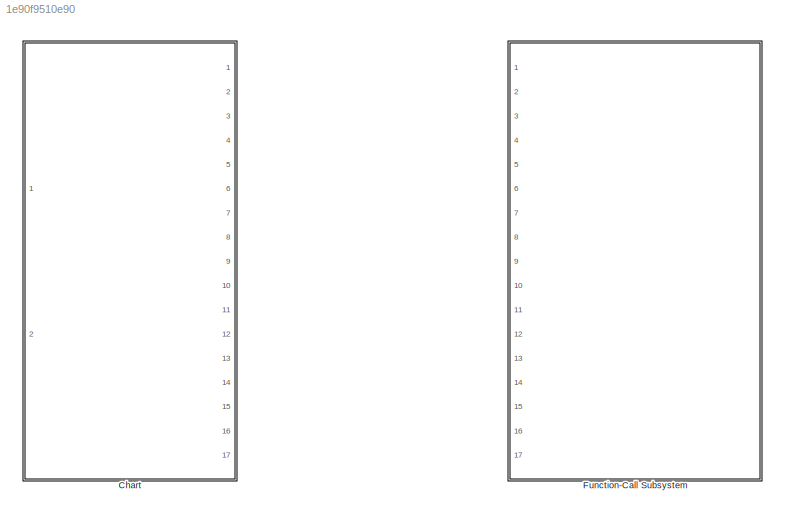
MODEL slx_1e90f9510e90
KIND model
CONFIG AbsTol = auto
CONFIG EnableMultiTasking = off
CONFIG FixedStep = auto
CONFIG MaxStep = auto
CONFIG MinStep = auto
CONFIG RelTol = 1e-3
CONFIG SampleTimeConstraint = Unconstrained
CONFIG Solver = VariableStepAuto
CONFIG SolverName = VariableStepAuto
CONFIG StartTime = 0.0
CONFIG StopTime = 10.0
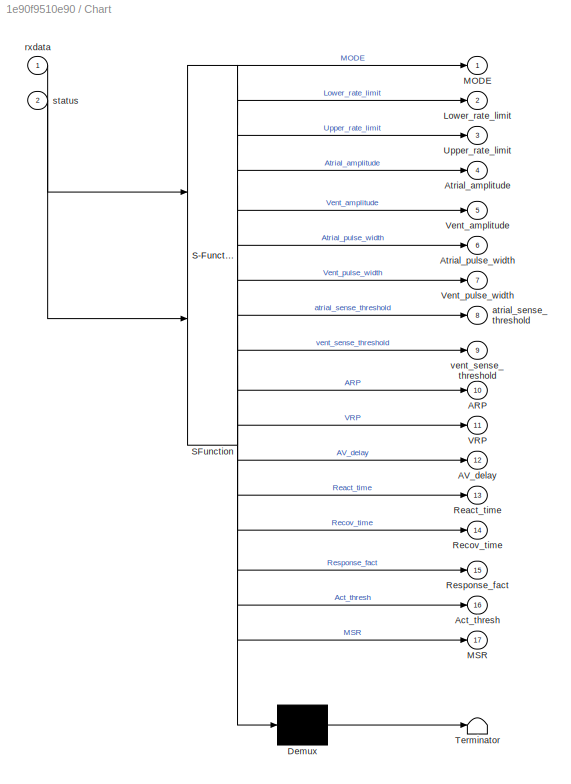
BLOCK [SubSystem] Chart
  BlockKeywords = __PRM__SERIALIZED__DATA__:Stateflow Chart,Stateflow Diagram
  ErrorFcn = Stateflow.Translate.translate
  PermitHierarchicalResolution = ExplicitOnly
  Ports = [2, 17]
  RequestExecContextInheritance = off
  SFBlockType = Chart
  TreatAsAtomicUnit = on
BLOCK [Demux] Chart/ Demux 
  Outputs = 1
  Ports = [1, 1]
BLOCK [S-Function] Chart/ SFunction 
  EnableBusSupport = on
  FunctionName = sf_sfun
  PortCounts = [2 18]
  Ports = [2, 18]
  SFcnIsStateOwnerBlock = off
  SFunctionDeploymentMode = off
  Tag = Stateflow S-Function serial_variables_corrected 1
BLOCK [Terminator] Chart/ Terminator 
BLOCK [Outport] Chart/ARP
  IconDisplay = Port number
  Port = 10
BLOCK [Outport] Chart/AV_delay
  IconDisplay = Port number
  Port = 12
BLOCK [Outport] Chart/Act_thresh
  IconDisplay = Port number
  Port = 16
BLOCK [Outport] Chart/Atrial_amplitude
  IconDisplay = Port number
  Port = 4
BLOCK [Outport] Chart/Atrial_pulse_width
  IconDisplay = Port number
  Port = 6
BLOCK [Outport] Chart/Lower_rate_limit
  IconDisplay = Port number
  Port = 2
BLOCK [Outport] Chart/MODE
  IconDisplay = Port number
BLOCK [Outport] Chart/MSR
  IconDisplay = Port number
  Port = 17
BLOCK [Outport] Chart/React_time
  IconDisplay = Port number
  Port = 13
BLOCK [Outport] Chart/Recov_time
  IconDisplay = Port number
  Port = 14
BLOCK [Outport] Chart/Response_fact
  IconDisplay = Port number
  Port = 15
BLOCK [Outport] Chart/Upper_rate_limit
  IconDisplay = Port number
  Port = 3
BLOCK [Outport] Chart/VRP
  IconDisplay = Port number
  Port = 11
BLOCK [Outport] Chart/Vent_amplitude
  IconDisplay = Port number
  Port = 5
BLOCK [Outport] Chart/Vent_pulse_width
  IconDisplay = Port number
  Port = 7
BLOCK [Outport] Chart/atrial_sense_threshold
  IconDisplay = Port number
  Port = 8
BLOCK [Inport] Chart/rxdata
  IconDisplay = Port number
BLOCK [Inport] Chart/status
  IconDisplay = Port number
  Port = 2
BLOCK [Outport] Chart/vent_sense_threshold
  IconDisplay = Port number
  Port = 9
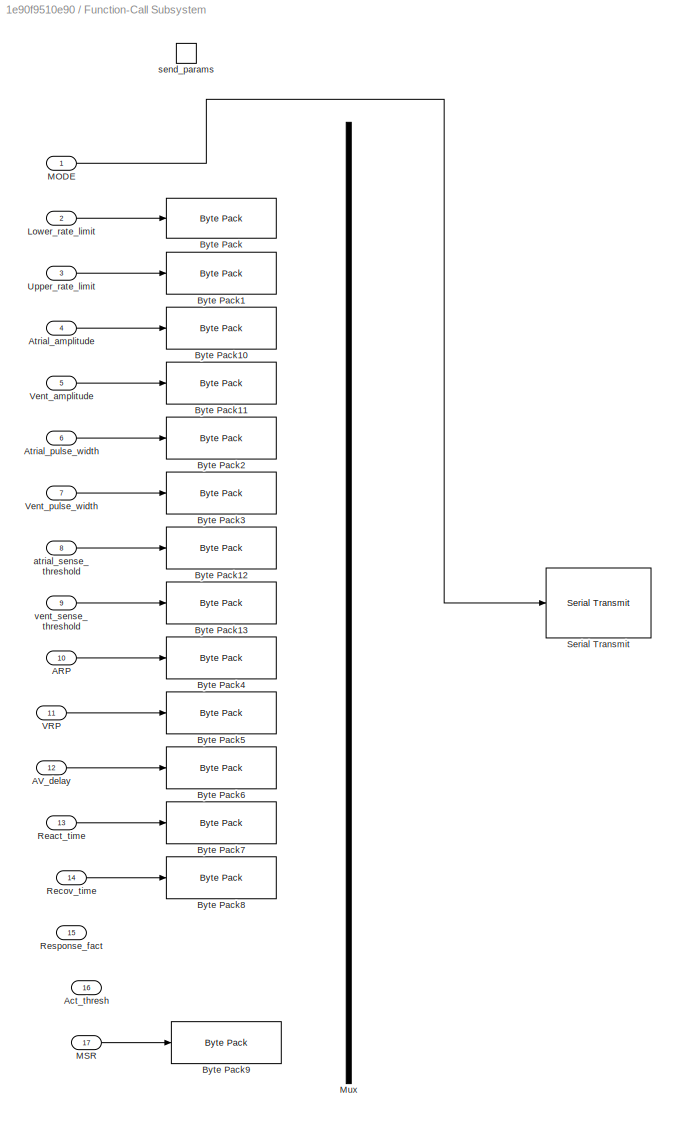
BLOCK [SubSystem] Function-Call Subsystem
  Ports = [17, 0, 0, 1]
  RequestExecContextInheritance = off
  TreatAsAtomicUnit = on
BLOCK [Inport] Function-Call Subsystem/ARP
  IconDisplay = Port number
  Port = 10
BLOCK [Inport] Function-Call Subsystem/AV_delay
  IconDisplay = Port number
  Port = 12
BLOCK [Inport] Function-Call Subsystem/Act_thresh
  IconDisplay = Port number
  Port = 16
BLOCK [Inport] Function-Call Subsystem/Atrial_amplitude
  IconDisplay = Port number
  Port = 4
BLOCK [Inport] Function-Call Subsystem/Atrial_pulse_width
  IconDisplay = Port number
  Port = 6
BLOCK [Reference] Function-Call Subsystem/Byte Pack  REF=etargetslib/Byte Pack
  Commented = on
  Ports = [1, 1]
  SourceBlock = etargetslib/Byte Pack
  SourceProductBaseCode = ME
  SourceProductName = MATLAB Coder
  SourceType = Byte pack
BLOCK [Reference] Function-Call Subsystem/Byte Pack1  REF=etargetslib/Byte Pack
  Commented = on
  Ports = [1, 1]
  SourceBlock = etargetslib/Byte Pack
  SourceProductBaseCode = ME
  SourceProductName = MATLAB Coder
  SourceType = Byte pack
BLOCK [Reference] Function-Call Subsystem/Byte Pack10  REF=etargetslib/Byte Pack
  Commented = on
  Ports = [1, 1]
  SourceBlock = etargetslib/Byte Pack
  SourceProductBaseCode = ME
  SourceProductName = MATLAB Coder
  SourceType = Byte pack
BLOCK [Reference] Function-Call Subsystem/Byte Pack11  REF=etargetslib/Byte Pack
  Commented = on
  Ports = [1, 1]
  SourceBlock = etargetslib/Byte Pack
  SourceProductBaseCode = ME
  SourceProductName = MATLAB Coder
  SourceType = Byte pack
BLOCK [Reference] Function-Call Subsystem/Byte Pack12  REF=etargetslib/Byte Pack
  Commented = on
  Ports = [1, 1]
  SourceBlock = etargetslib/Byte Pack
  SourceProductBaseCode = ME
  SourceProductName = MATLAB Coder
  SourceType = Byte pack
BLOCK [Reference] Function-Call Subsystem/Byte Pack13  REF=etargetslib/Byte Pack
  Commented = on
  Ports = [1, 1]
  SourceBlock = etargetslib/Byte Pack
  SourceProductBaseCode = ME
  SourceProductName = MATLAB Coder
  SourceType = Byte pack
BLOCK [Reference] Function-Call Subsystem/Byte Pack2  REF=etargetslib/Byte Pack
  Commented = on
  Ports = [1, 1]
  SourceBlock = etargetslib/Byte Pack
  SourceProductBaseCode = ME
  SourceProductName = MATLAB Coder
  SourceType = Byte pack
BLOCK [Reference] Function-Call Subsystem/Byte Pack3  REF=etargetslib/Byte Pack
  Commented = on
  Ports = [1, 1]
  SourceBlock = etargetslib/Byte Pack
  SourceProductBaseCode = ME
  SourceProductName = MATLAB Coder
  SourceType = Byte pack
BLOCK [Reference] Function-Call Subsystem/Byte Pack4  REF=etargetslib/Byte Pack
  Commented = on
  Ports = [1, 1]
  SourceBlock = etargetslib/Byte Pack
  SourceProductBaseCode = ME
  SourceProductName = MATLAB Coder
  SourceType = Byte pack
BLOCK [Reference] Function-Call Subsystem/Byte Pack5  REF=etargetslib/Byte Pack
  Commented = on
  Ports = [1, 1]
  SourceBlock = etargetslib/Byte Pack
  SourceProductBaseCode = ME
  SourceProductName = MATLAB Coder
  SourceType = Byte pack
BLOCK [Reference] Function-Call Subsystem/Byte Pack6  REF=etargetslib/Byte Pack
  Commented = on
  Ports = [1, 1]
  SourceBlock = etargetslib/Byte Pack
  SourceProductBaseCode = ME
  SourceProductName = MATLAB Coder
  SourceType = Byte pack
BLOCK [Reference] Function-Call Subsystem/Byte Pack7  REF=etargetslib/Byte Pack
  Commented = on
  Ports = [1, 1]
  SourceBlock = etargetslib/Byte Pack
  SourceProductBaseCode = ME
  SourceProductName = MATLAB Coder
  SourceType = Byte pack
BLOCK [Reference] Function-Call Subsystem/Byte Pack8  REF=etargetslib/Byte Pack
  Commented = on
  Ports = [1, 1]
  SourceBlock = etargetslib/Byte Pack
  SourceProductBaseCode = ME
  SourceProductName = MATLAB Coder
  SourceType = Byte pack
BLOCK [Reference] Function-Call Subsystem/Byte Pack9  REF=etargetslib/Byte Pack
  Commented = on
  Ports = [1, 1]
  SourceBlock = etargetslib/Byte Pack
  SourceProductBaseCode = ME
  SourceProductName = MATLAB Coder
  SourceType = Byte pack
BLOCK [Inport] Function-Call Subsystem/Lower_rate_limit
  IconDisplay = Port number
  Port = 2
BLOCK [Inport] Function-Call Subsystem/MODE
  IconDisplay = Port number
BLOCK [Inport] Function-Call Subsystem/MSR
  IconDisplay = Port number
  Port = 17
BLOCK [Mux] Function-Call Subsystem/Mux
  DisplayOption = bar
  Inputs = 17
  Ports = [17, 1]
BLOCK [Inport] Function-Call Subsystem/React_time
  IconDisplay = Port number
  Port = 13
BLOCK [Inport] Function-Call Subsystem/Recov_time
  IconDisplay = Port number
  Port = 14
BLOCK [Inport] Function-Call Subsystem/Response_fact
  IconDisplay = Port number
  Port = 15
BLOCK [Reference] Function-Call Subsystem/Serial Transmit  REF=frdmk64flib/Serial Transmit
  Ports = [1]
  SourceBlock = frdmk64flib/Serial Transmit
  SourceProductBaseCode = EC_FRDM_K64F
  SourceProductName = Simulink Coder Support Package for NXP FRDM-K64F Board
  SourceType = freedomk64f.SCIWrite
BLOCK [Inport] Function-Call Subsystem/Upper_rate_limit
  IconDisplay = Port number
  Port = 3
BLOCK [Inport] Function-Call Subsystem/VRP
  IconDisplay = Port number
  Port = 11
BLOCK [Inport] Function-Call Subsystem/Vent_amplitude
  IconDisplay = Port number
  Port = 5
BLOCK [Inport] Function-Call Subsystem/Vent_pulse_width
  IconDisplay = Port number
  Port = 7
BLOCK [Inport] Function-Call Subsystem/atrial_sense_threshold
  IconDisplay = Port number
  Port = 8
BLOCK [TriggerPort] Function-Call Subsystem/send_params
  FunctionName = send_params
  IsSimulinkFunction = on
  Ports = []
  StatesWhenEnabling = held
  TriggerType = function-call
  VariantControl = Variant
BLOCK [Inport] Function-Call Subsystem/vent_sense_threshold
  IconDisplay = Port number
  Port = 9
LINE Function-Call Subsystem/ARP:1 -> Function-Call Subsystem/Byte Pack4:1
LINE Function-Call Subsystem/AV_delay:1 -> Function-Call Subsystem/Byte Pack6:1
LINE Function-Call Subsystem/Atrial_amplitude:1 -> Function-Call Subsystem/Byte Pack10:1
LINE Function-Call Subsystem/Atrial_pulse_width:1 -> Function-Call Subsystem/Byte Pack2:1
LINE Function-Call Subsystem/Lower_rate_limit:1 -> Function-Call Subsystem/Byte Pack:1
LINE Function-Call Subsystem/MODE:1 -> Function-Call Subsystem/Serial Transmit:1
LINE Function-Call Subsystem/MSR:1 -> Function-Call Subsystem/Byte Pack9:1
LINE Function-Call Subsystem/React_time:1 -> Function-Call Subsystem/Byte Pack7:1
LINE Function-Call Subsystem/Recov_time:1 -> Function-Call Subsystem/Byte Pack8:1
LINE Function-Call Subsystem/Upper_rate_limit:1 -> Function-Call Subsystem/Byte Pack1:1
LINE Function-Call Subsystem/VRP:1 -> Function-Call Subsystem/Byte Pack5:1
LINE Function-Call Subsystem/Vent_amplitude:1 -> Function-Call Subsystem/Byte Pack11:1
LINE Function-Call Subsystem/Vent_pulse_width:1 -> Function-Call Subsystem/Byte Pack3:1
LINE Function-Call Subsystem/atrial_sense_threshold:1 -> Function-Call Subsystem/Byte Pack12:1
LINE Function-Call Subsystem/vent_sense_threshold:1 -> Function-Call Subsystem/Byte Pack13:1
CHART Chart states=5 transitions=5
  STATE_LABEL 'SAFETY_CHECK\nentry:\nif Lower_rate_limit < 50 || Lower_rate_limit > 175 || Upper_rate_limit < 75 || Upper_rate_limit > 175 ...\n        || Atrial_amplitude < 0.5 || Atrial_amplitude > 5 || Vent_amplitude < 0.5 || Vent_amplitude > 5 ...\n        || Atrial_pulse_width < 1 || Atrial_pulse_width > 10 || Vent_pulse_width < 1 || Vent_pulse_width > 10 ...\n        || atrial_sense_threshold < 0.5 || atrial_se...<+399ch>'
  STATE_LABEL "SET_PARAMS\n%we assume this is the order that the data is sent in\nentry:\n%MODE = rxdata(1);\n%Lower_rate_limit = typecast(rxdata(2:3), 'uint16');\n%Upper_rate_limit = typecast(rxdata(4:5), 'uint16');\n%Atrial_amplitude = typecast(rxdata(6:13), 'double');\n%Vent_amplitude = typecast(rxdata(14:21), 'double');\n%Atrial_pulse_width = typecast(rxdata(22:23), 'uint16');\n%Vent_pulse_width = typecast(rxdata(24:...<+466ch>"
  STATE_LABEL 'INITIAL\nentry:\nMODE = 1;\nLower_rate_limit = 60;\nUpper_rate_limit = 120;\nAtrial_amplitude = 3.3;\nVent_amplitude = 3.3;\nAtrial_pulse_width = 10;\nVent_pulse_width = 10;\natrial_sense_threshold = 2.75;\nvent_sense_threshold = 2.75;\nARP = 300;\nVRP = 300;\nAV_delay = 100;\nReact_time = 0; %unknown\nRecov_time = 0; %unknown\nResponse_fact = 0; %unknown\nAct_thres = 0; %unknown\nMSR = 0; %unknown'
  STATE_LABEL 'STANDBY\n%Waiting for COM'
  STATE_LABEL 'status == 0 indicates successful read'
